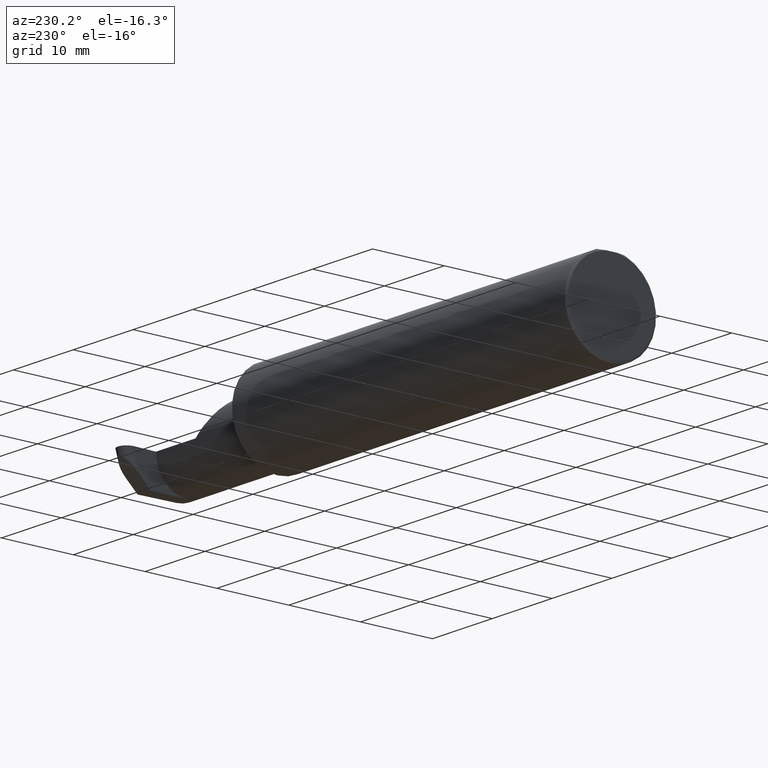
[diagram: clean part render]
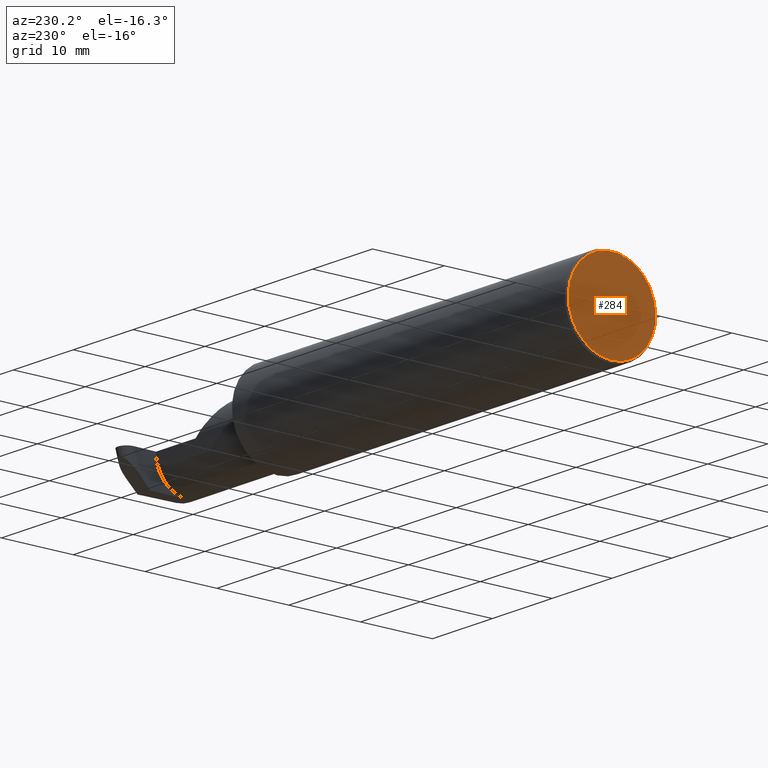
[diagram: same view with one face highlighted and labeled with its STEP entity id]
A machine part, auxiliary view. The second image highlights one B-rep face of the part: STEP entity #284.
In plain terms, the highlighted planar face has unit normal (1, 0, 0).
Its self-contained STEP definition (entity closure, byte-faithful):
#1 = DIRECTION ( 'NONE',  ( 0.000000000000000000, 0.000000000000000000, -1.000000000000000000 ) ) ;
#60 = VERTEX_POINT ( 'NONE', #265 ) ;
#80 = EDGE_LOOP ( 'NONE', ( #762, #342, #111 ) ) ;
#96 = AXIS2_PLACEMENT_3D ( 'NONE', #469, #729, #611 ) ;
#111 = ORIENTED_EDGE ( 'NONE', *, *, #616, .T. ) ;
#137 = CARTESIAN_POINT ( 'NONE',  ( 0.000000000000000000, 0.03090954545120574992, 0.2378499999999998671 ) ) ;
#150 = CARTESIAN_POINT ( 'NONE',  ( 0.000000000000000000, 0.2498499999999998500, 0.2378499999999998671 ) ) ;
#181 = AXIS2_PLACEMENT_3D ( 'NONE', #444, #573, #1 ) ;
#183 = AXIS2_PLACEMENT_3D ( 'NONE', #670, #615, #533 ) ;
#265 = CARTESIAN_POINT ( 'NONE',  ( 0.000000000000000000, 0.000000000000000000, -0.2398500000000001742 ) ) ;
#284 = ADVANCED_FACE ( 'NONE', ( #375 ), #490, .F. ) ;
#286 = DIRECTION ( 'NONE',  ( -0.000000000000000000, 1.000000000000000000, -0.000000000000000000 ) ) ;
#342 = ORIENTED_EDGE ( 'NONE', *, *, #520, .T. ) ;
#367 = VERTEX_POINT ( 'NONE', #137 ) ;
#375 = FACE_OUTER_BOUND ( 'NONE', #80, .T. ) ;
#398 = VERTEX_POINT ( 'NONE', #641 ) ;
#444 = CARTESIAN_POINT ( 'NONE',  ( 0.000000000000000000, 0.000000000000000000, 0.000000000000000000 ) ) ;
#458 = CIRCLE ( 'NONE', #183, 0.2398500000000001742 ) ;
#469 = CARTESIAN_POINT ( 'NONE',  ( 0.000000000000000000, 0.000000000000000000, 0.000000000000000000 ) ) ;
#490 = PLANE ( 'NONE',  #181 ) ;
#520 = EDGE_CURVE ( 'NONE', #367, #60, #458, .T. ) ;
#533 = DIRECTION ( 'NONE',  ( 0.000000000000000000, 0.000000000000000000, -1.000000000000000000 ) ) ;
#570 = EDGE_CURVE ( 'NONE', #398, #367, #743, .T. ) ;
#573 = DIRECTION ( 'NONE',  ( 1.000000000000000000, 0.000000000000000000, 0.000000000000000000 ) ) ;
#592 = CIRCLE ( 'NONE', #96, 0.2398500000000001742 ) ;
#611 = DIRECTION ( 'NONE',  ( 0.000000000000000000, 0.000000000000000000, -1.000000000000000000 ) ) ;
#615 = DIRECTION ( 'NONE',  ( -1.000000000000000000, -0.000000000000000000, -0.000000000000000000 ) ) ;
#616 = EDGE_CURVE ( 'NONE', #60, #398, #592, .T. ) ;
#641 = CARTESIAN_POINT ( 'NONE',  ( 0.000000000000000000, -0.03090954545120560767, 0.2378499999999998671 ) ) ;
#661 = VECTOR ( 'NONE', #286, 39.37007874015748143 ) ;
#670 = CARTESIAN_POINT ( 'NONE',  ( 0.000000000000000000, 0.000000000000000000, 0.000000000000000000 ) ) ;
#729 = DIRECTION ( 'NONE',  ( -1.000000000000000000, -0.000000000000000000, -0.000000000000000000 ) ) ;
#743 = LINE ( 'NONE', #150, #661 ) ;
#762 = ORIENTED_EDGE ( 'NONE', *, *, #570, .T. ) ;